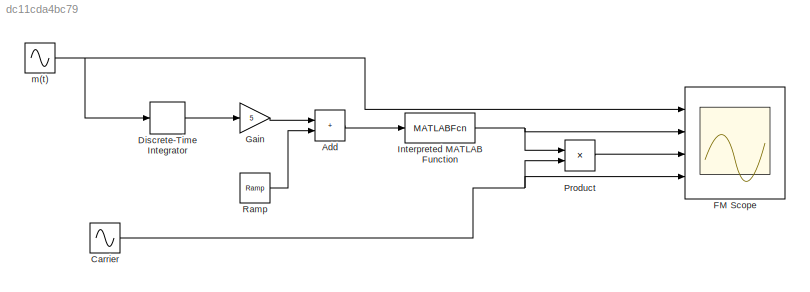
MODEL slx_dc11cda4bc79
KIND model
CONFIG AbsTol = auto
CONFIG EnableMultiTasking = off
CONFIG FixedStep = 0.01
CONFIG MaxStep = auto
CONFIG MinStep = auto
CONFIG RelTol = 1e-3
CONFIG SampleTimeConstraint = Unconstrained
CONFIG SolverName = ode3
CONFIG StartTime = 0.0
CONFIG StopTime = 10.0
BLOCK [Sum] Add
  IconShape = rectangular
  Ports = [2, 1]
BLOCK [Sin] Carrier
  Frequency = 25
  Ports = [0, 1]
  SampleTime = 0
BLOCK [DiscreteIntegrator] Discrete-Time Integrator
  ICPrevOutput = DiscIntNeverNeededParam
  ICPrevScaledInput = DiscIntNeverNeededParam
  InitialConditionSetting = Auto
  Ports = [1, 1]
  SampleTime = -1
BLOCK [Scope] FM Scope
  Floating = off
  NumInputPorts = 4
  Ports = [4]
  ScopeSpecificationString = Simulink.scopes.TimeScopeBlockCfg('CurrentConfiguration', extmgr.ConfigurationSet(extmgr.Configuration('Core','General UI',true),extmgr.Configuration('Core','Source UI',true),extmgr.Configuration('Sources','WiredSimulink',true),extmgr.Configuration('Visuals','Time Domain',true,'SerializedDisplays',{struct('MinYLimReal','-2.5','MaxYLimReal','2.5','YLabelReal','','MinYLimMag','0.00000','MaxYLimMag',...<+3382ch>
BLOCK [Gain] Gain
  Gain = 5
BLOCK [MATLABFcn] Interpreted MATLAB Function
  MATLABFcn = cos(2*pi*u)
  Ports = [1, 1]
BLOCK [Product] Product
  Ports = [2, 1]
BLOCK [Reference] Ramp  REF=simulink/Sources/Ramp
  Ports = [0, 1]
  SourceBlock = simulink/Sources/Ramp
  SourceProductBaseCode = SL
  SourceType = Ramp
BLOCK [Sin] m(t)
  Amplitude = 2
  Frequency = 2*pi
  Ports = [0, 1]
  SampleTime = 0
LINE Add:1 -> Interpreted MATLAB Function:1
NET Carrier:1 -> FM Scope:4, Product:2
LINE Discrete-Time Integrator:1 -> Gain:1
LINE Gain:1 -> Add:1
NET Interpreted MATLAB Function:1 -> FM Scope:2, Product:1
LINE Product:1 -> FM Scope:3
LINE Ramp:1 -> Add:2
NET m(t):1 -> Discrete-Time Integrator:1, FM Scope:1
note: NET lines group one-source signal fan-out (src -> all destinations, sorted); 1:1 wires keep LINE
